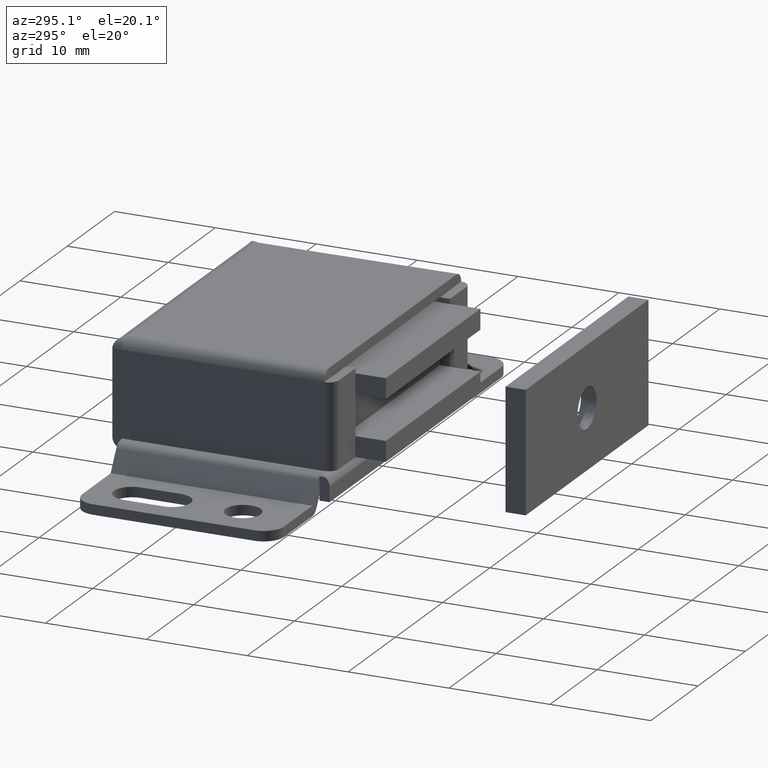
[diagram: clean part render]
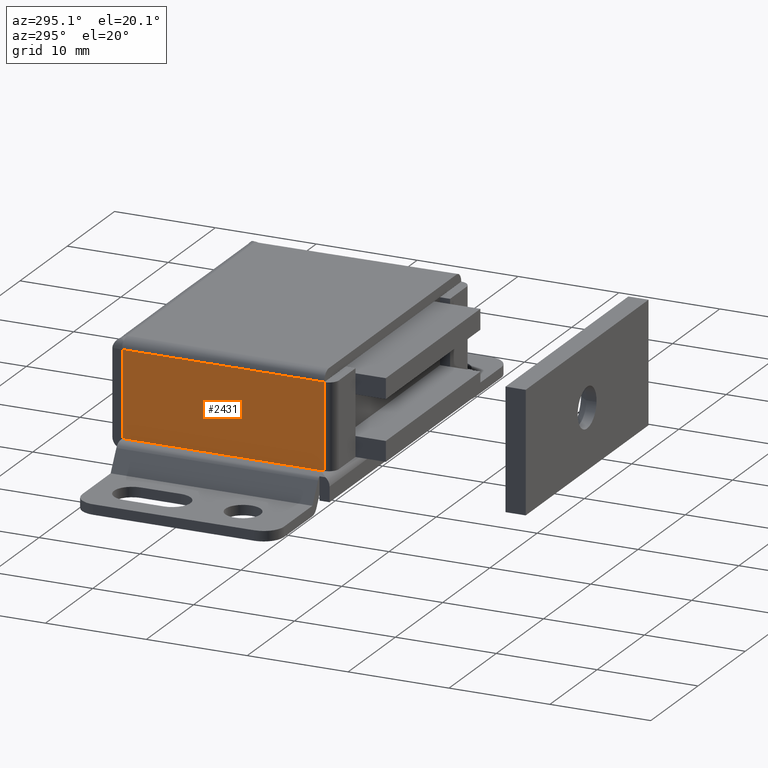
[diagram: same view with one face highlighted and labeled with its STEP entity id]
A machine part, auxiliary view. The second image highlights one B-rep face of the part: STEP entity #2431.
In plain terms, the highlighted face is a freeform B-spline surface patch.
Its self-contained STEP definition (entity closure, byte-faithful):
#1326=CARTESIAN_POINT('',(-14.500000000000000,-21.0,11.990000000000000));
#1327=VERTEX_POINT('',#1326);
#1343=CARTESIAN_POINT('',(-14.500000000000000,-21.0,3.509999999999945));
#1344=VERTEX_POINT('',#1343);
#1345=CARTESIAN_POINT('',(-14.500000000000000,-21.0,3.509999999999945));
#1346=CARTESIAN_POINT('',(-14.500000000000000,-21.0,11.990000000000000));
#1347=QUASI_UNIFORM_CURVE('',1,(#1345,#1346),.UNSPECIFIED.,.F.,.U.);
#1348=EDGE_CURVE('',#1344,#1327,#1347,.T.);
#2184=CARTESIAN_POINT('',(-14.500000000000000,-21.0,12.0));
#2185=VERTEX_POINT('',#2184);
#2199=CARTESIAN_POINT('',(-14.500000000000000,-21.0,11.990000000000000));
#2200=CARTESIAN_POINT('',(-14.500000000000000,-21.0,12.0));
#2201=QUASI_UNIFORM_CURVE('',1,(#2199,#2200),.UNSPECIFIED.,.F.,.U.);
#2202=EDGE_CURVE('',#1327,#2185,#2201,.T.);
#2251=CARTESIAN_POINT('',(-14.500000000000000,-21.0,3.499999999999945));
#2252=VERTEX_POINT('',#2251);
#2253=CARTESIAN_POINT('',(-14.500000000000000,-21.0,3.499999999999945));
#2254=CARTESIAN_POINT('',(-14.500000000000000,-21.0,3.509999999999945));
#2255=QUASI_UNIFORM_CURVE('',1,(#2253,#2254),.UNSPECIFIED.,.F.,.U.);
#2256=EDGE_CURVE('',#2252,#1344,#2255,.T.);
#2293=CARTESIAN_POINT('',(-14.500000000000000,-1.009999999999954,3.499999999999945));
#2294=VERTEX_POINT('',#2293);
#2295=CARTESIAN_POINT('',(-14.500000000000000,-1.009999999999954,12.0));
#2296=VERTEX_POINT('',#2295);
#2297=CARTESIAN_POINT('',(-14.500000000000000,-1.009999999999954,3.499999999999945));
#2298=CARTESIAN_POINT('',(-14.500000000000000,-1.009999999999954,12.0));
#2299=QUASI_UNIFORM_CURVE('',1,(#2297,#2298),.UNSPECIFIED.,.F.,.U.);
#2300=EDGE_CURVE('',#2294,#2296,#2299,.T.);
#2354=CARTESIAN_POINT('',(-14.500000000000000,-1.009999999999954,3.499999999999945));
#2355=CARTESIAN_POINT('',(-14.500000000000000,-21.0,3.499999999999945));
#2356=QUASI_UNIFORM_CURVE('',1,(#2354,#2355),.UNSPECIFIED.,.F.,.U.);
#2357=EDGE_CURVE('',#2294,#2252,#2356,.T.);
#2414=CARTESIAN_POINT('',(-14.500000000000000,-21.998500461255510,12.424574983525360));
#2415=CARTESIAN_POINT('',(-14.500000000000000,-21.998500461255510,3.075424788486824));
#2416=CARTESIAN_POINT('',(-14.500000000000000,-0.011499002570871,12.424574983525360));
#2417=CARTESIAN_POINT('',(-14.500000000000000,-0.011499002570871,3.075424788486824));
#2418=B_SPLINE_SURFACE_WITH_KNOTS('',1,1,((#2414,#2416),(#2415,#2417)),.UNSPECIFIED.,.F.,.F.,.U.,(2,2),(2,2),(0.0,9.349150195038531),(0.0,21.987001458684642),.UNSPECIFIED.);
#2419=ORIENTED_EDGE('',*,*,#2202,.T.);
#2420=CARTESIAN_POINT('',(-14.500000000000000,-21.0,12.0));
#2421=CARTESIAN_POINT('',(-14.500000000000000,-1.009999999999954,12.0));
#2422=QUASI_UNIFORM_CURVE('',1,(#2420,#2421),.UNSPECIFIED.,.F.,.U.);
#2423=EDGE_CURVE('',#2185,#2296,#2422,.T.);
#2424=ORIENTED_EDGE('',*,*,#2423,.T.);
#2425=ORIENTED_EDGE('',*,*,#2300,.F.);
#2426=ORIENTED_EDGE('',*,*,#2357,.T.);
#2427=ORIENTED_EDGE('',*,*,#2256,.T.);
#2428=ORIENTED_EDGE('',*,*,#1348,.T.);
#2429=EDGE_LOOP('',(#2419,#2424,#2425,#2426,#2427,#2428));
#2430=FACE_OUTER_BOUND('',#2429,.T.);
#2431=ADVANCED_FACE('',(#2430),#2418,.F.);